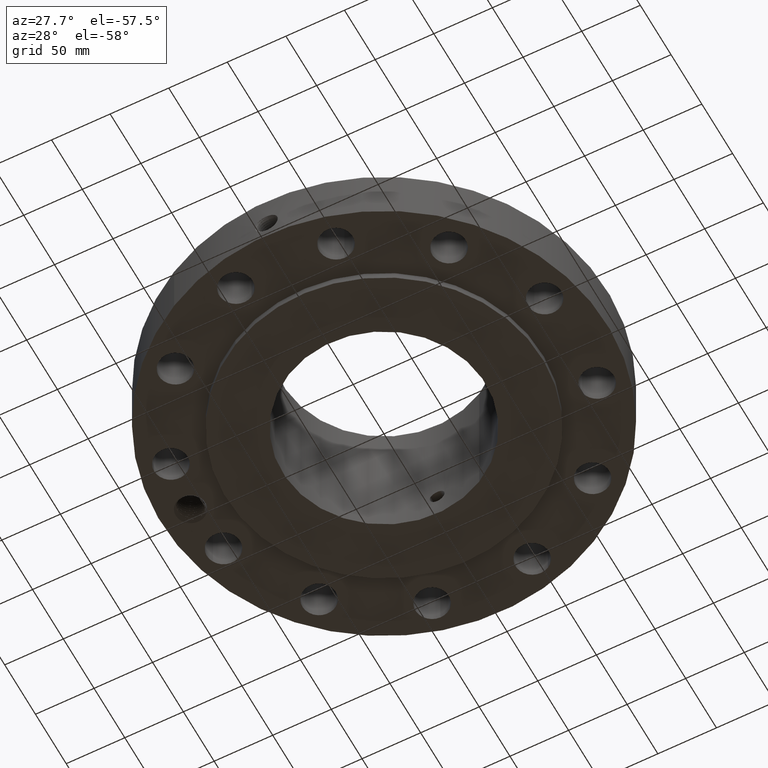
[diagram: clean part render]
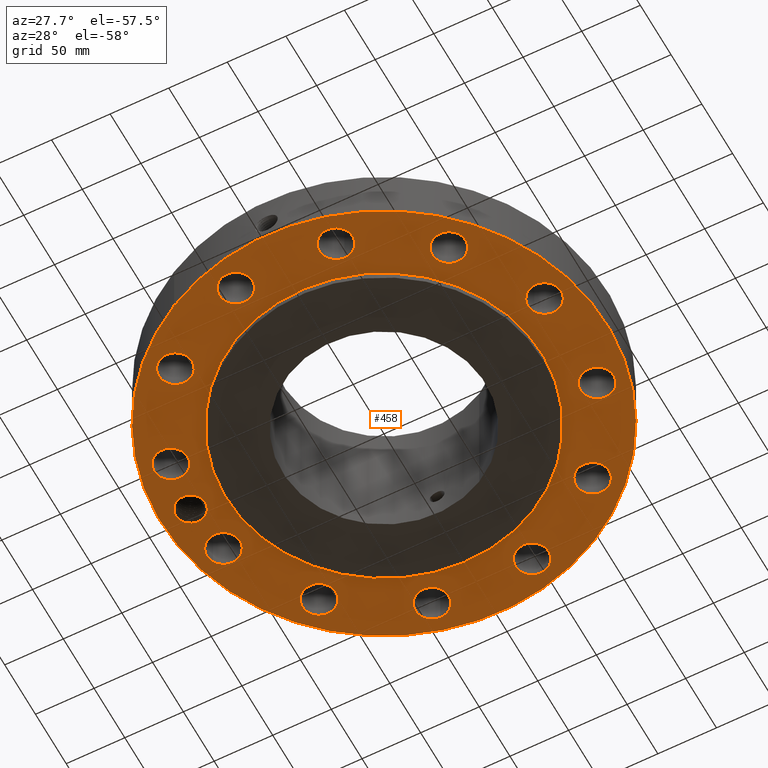
[diagram: same view with one face highlighted and labeled with its STEP entity id]
A machine part, auxiliary view. The second image highlights one B-rep face of the part: STEP entity #458.
In plain terms, the highlighted planar face has unit normal (0, 0, -1).
Its self-contained STEP definition (entity closure, byte-faithful):
#42=AXIS2_PLACEMENT_3D('Circle Axis2P3D',#40,#41,$) ;
#165=AXIS2_PLACEMENT_3D('Plane Axis2P3D',#162,#163,#164) ;
#169=AXIS2_PLACEMENT_3D('Circle Axis2P3D',#167,#168,$) ;
#178=AXIS2_PLACEMENT_3D('Circle Axis2P3D',#176,#177,$) ;
#187=AXIS2_PLACEMENT_3D('Circle Axis2P3D',#185,#186,$) ;
#194=AXIS2_PLACEMENT_3D('Circle Axis2P3D',#192,#193,$) ;
#226=AXIS2_PLACEMENT_3D('Circle Axis2P3D',#224,#225,$) ;
#235=AXIS2_PLACEMENT_3D('Circle Axis2P3D',#233,#234,$) ;
#244=AXIS2_PLACEMENT_3D('Circle Axis2P3D',#242,#243,$) ;
#253=AXIS2_PLACEMENT_3D('Circle Axis2P3D',#251,#252,$) ;
#262=AXIS2_PLACEMENT_3D('Circle Axis2P3D',#260,#261,$) ;
#271=AXIS2_PLACEMENT_3D('Circle Axis2P3D',#269,#270,$) ;
#280=AXIS2_PLACEMENT_3D('Circle Axis2P3D',#278,#279,$) ;
#289=AXIS2_PLACEMENT_3D('Circle Axis2P3D',#287,#288,$) ;
#298=AXIS2_PLACEMENT_3D('Circle Axis2P3D',#296,#297,$) ;
#307=AXIS2_PLACEMENT_3D('Circle Axis2P3D',#305,#306,$) ;
#316=AXIS2_PLACEMENT_3D('Circle Axis2P3D',#314,#315,$) ;
#325=AXIS2_PLACEMENT_3D('Circle Axis2P3D',#323,#324,$) ;
#334=AXIS2_PLACEMENT_3D('Circle Axis2P3D',#332,#333,$) ;
#343=AXIS2_PLACEMENT_3D('Circle Axis2P3D',#341,#342,$) ;
#352=AXIS2_PLACEMENT_3D('Circle Axis2P3D',#350,#351,$) ;
#361=AXIS2_PLACEMENT_3D('Circle Axis2P3D',#359,#360,$) ;
#370=AXIS2_PLACEMENT_3D('Circle Axis2P3D',#368,#369,$) ;
#379=AXIS2_PLACEMENT_3D('Circle Axis2P3D',#377,#378,$) ;
#388=AXIS2_PLACEMENT_3D('Circle Axis2P3D',#386,#387,$) ;
#397=AXIS2_PLACEMENT_3D('Circle Axis2P3D',#395,#396,$) ;
#406=AXIS2_PLACEMENT_3D('Circle Axis2P3D',#404,#405,$) ;
#415=AXIS2_PLACEMENT_3D('Circle Axis2P3D',#413,#414,$) ;
#424=AXIS2_PLACEMENT_3D('Circle Axis2P3D',#422,#423,$) ;
#433=AXIS2_PLACEMENT_3D('Circle Axis2P3D',#431,#432,$) ;
#442=AXIS2_PLACEMENT_3D('Circle Axis2P3D',#440,#441,$) ;
#451=AXIS2_PLACEMENT_3D('Circle Axis2P3D',#449,#450,$) ;
#40=CARTESIAN_POINT('Axis2P3D Location',(0.,0.,0.250000000001)) ;
#44=CARTESIAN_POINT('Vertex',(-3.59569153955,-6.5818692142,0.250000000001)) ;
#46=CARTESIAN_POINT('Vertex',(3.59569153955,6.5818692142,0.250000000001)) ;
#162=CARTESIAN_POINT('Axis2P3D Location',(0.,5.31000000002,0.250000000001)) ;
#167=CARTESIAN_POINT('Axis2P3D Location',(0.,0.,0.250000000001)) ;
#176=CARTESIAN_POINT('Axis2P3D Location',(-6.50000000003,1.1189649382E-015,0.250000000001)) ;
#180=CARTESIAN_POINT('Vertex',(-6.93659732457,0.238514205457,0.250000000001)) ;
#182=CARTESIAN_POINT('Vertex',(-6.00654917209,-0.0633445373634,0.250000000001)) ;
#185=CARTESIAN_POINT('Axis2P3D Location',(-6.50000000003,1.1189649382E-015,0.250000000001)) ;
#189=CARTESIAN_POINT('Vertex',(-6.06340267548,-0.238514205457,0.250000000001)) ;
#192=CARTESIAN_POINT('Axis2P3D Location',(-6.50000000003,1.1189649382E-015,0.250000000001)) ;
#196=CARTESIAN_POINT('Vertex',(-6.0371496558,-0.182416580519,0.250000000001)) ;
#200=CARTESIAN_POINT('Control Point',(-6.0156992219,-0.124333932227,0.250000000001)) ;
#201=CARTESIAN_POINT('Control Point',(-6.01926733583,-0.136219196793,0.250000000001)) ;
#202=CARTESIAN_POINT('Control Point',(-6.02320188199,-0.147985150265,0.250000000001)) ;
#203=CARTESIAN_POINT('Control Point',(-6.02749790454,-0.159616553925,0.250000000001)) ;
#204=CARTESIAN_POINT('Control Point',(-6.03214945164,-0.171098513007,0.250000000001)) ;
#205=CARTESIAN_POINT('Control Point',(-6.0371496558,-0.182416580519,0.250000000001)) ;
#206=CARTESIAN_POINT('Vertex',(-6.0156992219,-0.124333932231,0.250000000001)) ;
#210=CARTESIAN_POINT('Control Point',(-6.0156992219,-0.124333932231,0.250000000001)) ;
#211=CARTESIAN_POINT('Control Point',(-6.01311478049,-0.11225359188,0.250000000001)) ;
#212=CARTESIAN_POINT('Control Point',(-6.01090484628,-0.100098834105,0.250000000001)) ;
#213=CARTESIAN_POINT('Control Point',(-6.00907260953,-0.0878851673801,0.250000000001)) ;
#214=CARTESIAN_POINT('Control Point',(-6.00762029825,-0.0756283961532,0.250000000001)) ;
#215=CARTESIAN_POINT('Control Point',(-6.00654917209,-0.0633445373634,0.250000000001)) ;
#224=CARTESIAN_POINT('Axis2P3D Location',(6.2785178709,-1.68232379317,0.250000000001)) ;
#228=CARTESIAN_POINT('Vertex',(6.76996410556,-1.95080209479,0.250000000001)) ;
#230=CARTESIAN_POINT('Vertex',(5.78707163624,-1.41384549155,0.250000000001)) ;
#233=CARTESIAN_POINT('Axis2P3D Location',(6.2785178709,-1.68232379317,0.250000000001)) ;
#242=CARTESIAN_POINT('Axis2P3D Location',(0.,0.,0.250000000001)) ;
#246=CARTESIAN_POINT('Vertex',(2.54574961,4.65996340366,0.250000000001)) ;
#248=CARTESIAN_POINT('Vertex',(-2.54574961,-4.65996340366,0.250000000001)) ;
#251=CARTESIAN_POINT('Axis2P3D Location',(0.,0.,0.250000000001)) ;
#260=CARTESIAN_POINT('Axis2P3D Location',(4.59619407773,-4.59619407773,0.250000000001)) ;
#264=CARTESIAN_POINT('Vertex',(4.30482830473,-4.11796193083,0.250000000001)) ;
#266=CARTESIAN_POINT('Vertex',(4.88755985073,-5.07442622463,0.250000000001)) ;
#269=CARTESIAN_POINT('Axis2P3D Location',(4.59619407773,-4.59619407773,0.250000000001)) ;
#278=CARTESIAN_POINT('Axis2P3D Location',(1.68232379317,-6.2785178709,0.250000000001)) ;
#282=CARTESIAN_POINT('Vertex',(1.66910970541,-5.71867379628,0.250000000001)) ;
#284=CARTESIAN_POINT('Vertex',(1.69553788094,-6.83836194552,0.250000000001)) ;
#287=CARTESIAN_POINT('Axis2P3D Location',(1.68232379317,-6.2785178709,0.250000000001)) ;
#296=CARTESIAN_POINT('Axis2P3D Location',(-1.68232379317,-6.2785178709,0.250000000001)) ;
#300=CARTESIAN_POINT('Vertex',(-1.41384549155,-5.78707163624,0.250000000001)) ;
#302=CARTESIAN_POINT('Vertex',(-1.95080209479,-6.76996410556,0.250000000001)) ;
#305=CARTESIAN_POINT('Axis2P3D Location',(-1.68232379317,-6.2785178709,0.250000000001)) ;
#314=CARTESIAN_POINT('Axis2P3D Location',(-4.59619407773,-4.59619407773,0.250000000001)) ;
#318=CARTESIAN_POINT('Vertex',(-4.11796193083,-4.30482830473,0.250000000001)) ;
#320=CARTESIAN_POINT('Vertex',(-5.07442622463,-4.88755985073,0.250000000001)) ;
#323=CARTESIAN_POINT('Axis2P3D Location',(-4.59619407773,-4.59619407773,0.250000000001)) ;
#332=CARTESIAN_POINT('Axis2P3D Location',(-6.2785178709,-1.68232379317,0.250000000001)) ;
#336=CARTESIAN_POINT('Vertex',(-5.71867379628,-1.66910970541,0.250000000001)) ;
#338=CARTESIAN_POINT('Vertex',(-6.83836194552,-1.69553788094,0.250000000001)) ;
#341=CARTESIAN_POINT('Axis2P3D Location',(-6.2785178709,-1.68232379317,0.250000000001)) ;
#350=CARTESIAN_POINT('Axis2P3D Location',(-6.2785178709,1.68232379317,0.250000000001)) ;
#354=CARTESIAN_POINT('Vertex',(-5.78707163624,1.41384549155,0.250000000001)) ;
#356=CARTESIAN_POINT('Vertex',(-6.76996410556,1.95080209479,0.250000000001)) ;
#359=CARTESIAN_POINT('Axis2P3D Location',(-6.2785178709,1.68232379317,0.250000000001)) ;
#368=CARTESIAN_POINT('Axis2P3D Location',(-4.59619407773,4.59619407773,0.250000000001)) ;
#372=CARTESIAN_POINT('Vertex',(-4.30482830473,4.11796193083,0.250000000001)) ;
#374=CARTESIAN_POINT('Vertex',(-4.88755985073,5.07442622463,0.250000000001)) ;
#377=CARTESIAN_POINT('Axis2P3D Location',(-4.59619407773,4.59619407773,0.250000000001)) ;
#386=CARTESIAN_POINT('Axis2P3D Location',(-1.68232379317,6.2785178709,0.250000000001)) ;
#390=CARTESIAN_POINT('Vertex',(-1.66910970541,5.71867379628,0.250000000001)) ;
#392=CARTESIAN_POINT('Vertex',(-1.69553788094,6.83836194552,0.250000000001)) ;
#395=CARTESIAN_POINT('Axis2P3D Location',(-1.68232379317,6.2785178709,0.250000000001)) ;
#404=CARTESIAN_POINT('Axis2P3D Location',(1.68232379317,6.2785178709,0.250000000001)) ;
#408=CARTESIAN_POINT('Vertex',(1.41384549155,5.78707163624,0.250000000001)) ;
#410=CARTESIAN_POINT('Vertex',(1.95080209479,6.76996410556,0.250000000001)) ;
#413=CARTESIAN_POINT('Axis2P3D Location',(1.68232379317,6.2785178709,0.250000000001)) ;
#422=CARTESIAN_POINT('Axis2P3D Location',(4.59619407773,4.59619407773,0.250000000001)) ;
#426=CARTESIAN_POINT('Vertex',(4.11796193083,4.30482830473,0.250000000001)) ;
#428=CARTESIAN_POINT('Vertex',(5.07442622463,4.88755985073,0.250000000001)) ;
#431=CARTESIAN_POINT('Axis2P3D Location',(4.59619407773,4.59619407773,0.250000000001)) ;
#440=CARTESIAN_POINT('Axis2P3D Location',(6.2785178709,1.68232379317,0.250000000001)) ;
#444=CARTESIAN_POINT('Vertex',(5.71867379628,1.66910970541,0.250000000001)) ;
#446=CARTESIAN_POINT('Vertex',(6.83836194552,1.69553788094,0.250000000001)) ;
#449=CARTESIAN_POINT('Axis2P3D Location',(6.2785178709,1.68232379317,0.250000000001)) ;
#41=DIRECTION('Axis2P3D Direction',(0.,0.,-0.0393700787402)) ;
#163=DIRECTION('Axis2P3D Direction',(0.,0.,-0.0393700787402)) ;
#164=DIRECTION('Axis2P3D XDirection',(0.0393700787402,0.,0.)) ;
#168=DIRECTION('Axis2P3D Direction',(0.,0.,-0.0393700787402)) ;
#177=DIRECTION('Axis2P3D Direction',(0.,0.,-0.0393700787402)) ;
#186=DIRECTION('Axis2P3D Direction',(0.,0.,-0.0393700787402)) ;
#193=DIRECTION('Axis2P3D Direction',(0.,0.,-0.0393700787402)) ;
#225=DIRECTION('Axis2P3D Direction',(0.,0.,-0.0393700787402)) ;
#234=DIRECTION('Axis2P3D Direction',(0.,0.,-0.0393700787402)) ;
#243=DIRECTION('Axis2P3D Direction',(0.,0.,-0.0393700787402)) ;
#252=DIRECTION('Axis2P3D Direction',(0.,0.,-0.0393700787402)) ;
#261=DIRECTION('Axis2P3D Direction',(0.,0.,-0.0393700787402)) ;
#270=DIRECTION('Axis2P3D Direction',(0.,0.,-0.0393700787402)) ;
#279=DIRECTION('Axis2P3D Direction',(0.,0.,-0.0393700787402)) ;
#288=DIRECTION('Axis2P3D Direction',(0.,0.,-0.0393700787402)) ;
#297=DIRECTION('Axis2P3D Direction',(0.,0.,-0.0393700787402)) ;
#306=DIRECTION('Axis2P3D Direction',(0.,0.,-0.0393700787402)) ;
#315=DIRECTION('Axis2P3D Direction',(0.,0.,-0.0393700787402)) ;
#324=DIRECTION('Axis2P3D Direction',(0.,0.,-0.0393700787402)) ;
#333=DIRECTION('Axis2P3D Direction',(0.,0.,-0.0393700787402)) ;
#342=DIRECTION('Axis2P3D Direction',(0.,0.,-0.0393700787402)) ;
#351=DIRECTION('Axis2P3D Direction',(0.,0.,-0.0393700787402)) ;
#360=DIRECTION('Axis2P3D Direction',(0.,0.,-0.0393700787402)) ;
#369=DIRECTION('Axis2P3D Direction',(0.,0.,-0.0393700787402)) ;
#378=DIRECTION('Axis2P3D Direction',(0.,0.,-0.0393700787402)) ;
#387=DIRECTION('Axis2P3D Direction',(0.,0.,-0.0393700787402)) ;
#396=DIRECTION('Axis2P3D Direction',(0.,0.,-0.0393700787402)) ;
#405=DIRECTION('Axis2P3D Direction',(0.,0.,-0.0393700787402)) ;
#414=DIRECTION('Axis2P3D Direction',(0.,0.,-0.0393700787402)) ;
#423=DIRECTION('Axis2P3D Direction',(0.,0.,-0.0393700787402)) ;
#432=DIRECTION('Axis2P3D Direction',(0.,0.,-0.0393700787402)) ;
#441=DIRECTION('Axis2P3D Direction',(0.,0.,-0.0393700787402)) ;
#450=DIRECTION('Axis2P3D Direction',(0.,0.,-0.0393700787402)) ;
#173=ORIENTED_EDGE('',*,*,#48,.T.) ;
#174=ORIENTED_EDGE('',*,*,#171,.T.) ;
#218=ORIENTED_EDGE('',*,*,#184,.F.) ;
#219=ORIENTED_EDGE('',*,*,#191,.F.) ;
#220=ORIENTED_EDGE('',*,*,#198,.F.) ;
#221=ORIENTED_EDGE('',*,*,#208,.F.) ;
#222=ORIENTED_EDGE('',*,*,#216,.T.) ;
#239=ORIENTED_EDGE('',*,*,#232,.F.) ;
#240=ORIENTED_EDGE('',*,*,#237,.F.) ;
#257=ORIENTED_EDGE('',*,*,#250,.F.) ;
#258=ORIENTED_EDGE('',*,*,#255,.F.) ;
#275=ORIENTED_EDGE('',*,*,#268,.F.) ;
#276=ORIENTED_EDGE('',*,*,#273,.F.) ;
#293=ORIENTED_EDGE('',*,*,#286,.F.) ;
#294=ORIENTED_EDGE('',*,*,#291,.F.) ;
#311=ORIENTED_EDGE('',*,*,#304,.F.) ;
#312=ORIENTED_EDGE('',*,*,#309,.F.) ;
#329=ORIENTED_EDGE('',*,*,#322,.F.) ;
#330=ORIENTED_EDGE('',*,*,#327,.F.) ;
#347=ORIENTED_EDGE('',*,*,#340,.F.) ;
#348=ORIENTED_EDGE('',*,*,#345,.F.) ;
#365=ORIENTED_EDGE('',*,*,#358,.F.) ;
#366=ORIENTED_EDGE('',*,*,#363,.F.) ;
#383=ORIENTED_EDGE('',*,*,#376,.F.) ;
#384=ORIENTED_EDGE('',*,*,#381,.F.) ;
#401=ORIENTED_EDGE('',*,*,#394,.F.) ;
#402=ORIENTED_EDGE('',*,*,#399,.F.) ;
#419=ORIENTED_EDGE('',*,*,#412,.F.) ;
#420=ORIENTED_EDGE('',*,*,#417,.F.) ;
#437=ORIENTED_EDGE('',*,*,#430,.F.) ;
#438=ORIENTED_EDGE('',*,*,#435,.F.) ;
#455=ORIENTED_EDGE('',*,*,#448,.F.) ;
#456=ORIENTED_EDGE('',*,*,#453,.F.) ;
#223=FACE_BOUND('',#217,.T.) ;
#241=FACE_BOUND('',#238,.T.) ;
#259=FACE_BOUND('',#256,.T.) ;
#277=FACE_BOUND('',#274,.T.) ;
#295=FACE_BOUND('',#292,.T.) ;
#313=FACE_BOUND('',#310,.T.) ;
#331=FACE_BOUND('',#328,.T.) ;
#349=FACE_BOUND('',#346,.T.) ;
#367=FACE_BOUND('',#364,.T.) ;
#385=FACE_BOUND('',#382,.T.) ;
#403=FACE_BOUND('',#400,.T.) ;
#421=FACE_BOUND('',#418,.T.) ;
#439=FACE_BOUND('',#436,.T.) ;
#457=FACE_BOUND('',#454,.T.) ;
#458=ADVANCED_FACE('PartBody',(#175,#223,#241,#259,#277,#295,#313,#331,#349,#367,#385,#403,#421,#439,#457),#166,.T.) ;
#199=B_SPLINE_CURVE_WITH_KNOTS('',5,(#200,#201,#202,#203,#204,#205),.UNSPECIFIED.,.F.,.U.,(6,6),(0.,2.16318149343),.UNSPECIFIED.) ;
#209=B_SPLINE_CURVE_WITH_KNOTS('',5,(#210,#211,#212,#213,#214,#215),.UNSPECIFIED.,.F.,.U.,(6,6),(0.,2.15348039882),.UNSPECIFIED.) ;
#43=CIRCLE('generated circle',#42,7.50000000003) ;
#170=CIRCLE('generated circle',#169,7.50000000003) ;
#179=CIRCLE('generated circle',#178,0.497500000002) ;
#188=CIRCLE('generated circle',#187,0.497500000002) ;
#195=CIRCLE('generated circle',#194,0.497500000002) ;
#227=CIRCLE('generated circle',#226,0.560000000002) ;
#236=CIRCLE('generated circle',#235,0.560000000002) ;
#245=CIRCLE('generated circle',#244,5.31000000002) ;
#254=CIRCLE('generated circle',#253,5.31000000002) ;
#263=CIRCLE('generated circle',#262,0.560000000002) ;
#272=CIRCLE('generated circle',#271,0.560000000002) ;
#281=CIRCLE('generated circle',#280,0.560000000002) ;
#290=CIRCLE('generated circle',#289,0.560000000002) ;
#299=CIRCLE('generated circle',#298,0.560000000002) ;
#308=CIRCLE('generated circle',#307,0.560000000002) ;
#317=CIRCLE('generated circle',#316,0.560000000002) ;
#326=CIRCLE('generated circle',#325,0.560000000002) ;
#335=CIRCLE('generated circle',#334,0.560000000002) ;
#344=CIRCLE('generated circle',#343,0.560000000002) ;
#353=CIRCLE('generated circle',#352,0.560000000002) ;
#362=CIRCLE('generated circle',#361,0.560000000002) ;
#371=CIRCLE('generated circle',#370,0.560000000002) ;
#380=CIRCLE('generated circle',#379,0.560000000002) ;
#389=CIRCLE('generated circle',#388,0.560000000002) ;
#398=CIRCLE('generated circle',#397,0.560000000002) ;
#407=CIRCLE('generated circle',#406,0.560000000002) ;
#416=CIRCLE('generated circle',#415,0.560000000002) ;
#425=CIRCLE('generated circle',#424,0.560000000002) ;
#434=CIRCLE('generated circle',#433,0.560000000002) ;
#443=CIRCLE('generated circle',#442,0.560000000002) ;
#452=CIRCLE('generated circle',#451,0.560000000002) ;
#48=EDGE_CURVE('',#45,#47,#43,.T.) ;
#171=EDGE_CURVE('',#47,#45,#170,.T.) ;
#184=EDGE_CURVE('',#181,#183,#179,.T.) ;
#191=EDGE_CURVE('',#190,#181,#188,.T.) ;
#198=EDGE_CURVE('',#197,#190,#195,.T.) ;
#208=EDGE_CURVE('',#207,#197,#199,.T.) ;
#216=EDGE_CURVE('',#207,#183,#209,.T.) ;
#232=EDGE_CURVE('',#229,#231,#227,.T.) ;
#237=EDGE_CURVE('',#231,#229,#236,.T.) ;
#250=EDGE_CURVE('',#247,#249,#245,.T.) ;
#255=EDGE_CURVE('',#249,#247,#254,.T.) ;
#268=EDGE_CURVE('',#265,#267,#263,.T.) ;
#273=EDGE_CURVE('',#267,#265,#272,.T.) ;
#286=EDGE_CURVE('',#283,#285,#281,.T.) ;
#291=EDGE_CURVE('',#285,#283,#290,.T.) ;
#304=EDGE_CURVE('',#301,#303,#299,.T.) ;
#309=EDGE_CURVE('',#303,#301,#308,.T.) ;
#322=EDGE_CURVE('',#319,#321,#317,.T.) ;
#327=EDGE_CURVE('',#321,#319,#326,.T.) ;
#340=EDGE_CURVE('',#337,#339,#335,.T.) ;
#345=EDGE_CURVE('',#339,#337,#344,.T.) ;
#358=EDGE_CURVE('',#355,#357,#353,.T.) ;
#363=EDGE_CURVE('',#357,#355,#362,.T.) ;
#376=EDGE_CURVE('',#373,#375,#371,.T.) ;
#381=EDGE_CURVE('',#375,#373,#380,.T.) ;
#394=EDGE_CURVE('',#391,#393,#389,.T.) ;
#399=EDGE_CURVE('',#393,#391,#398,.T.) ;
#412=EDGE_CURVE('',#409,#411,#407,.T.) ;
#417=EDGE_CURVE('',#411,#409,#416,.T.) ;
#430=EDGE_CURVE('',#427,#429,#425,.T.) ;
#435=EDGE_CURVE('',#429,#427,#434,.T.) ;
#448=EDGE_CURVE('',#445,#447,#443,.T.) ;
#453=EDGE_CURVE('',#447,#445,#452,.T.) ;
#172=EDGE_LOOP('',(#173,#174)) ;
#217=EDGE_LOOP('',(#218,#219,#220,#221,#222)) ;
#238=EDGE_LOOP('',(#239,#240)) ;
#256=EDGE_LOOP('',(#257,#258)) ;
#274=EDGE_LOOP('',(#275,#276)) ;
#292=EDGE_LOOP('',(#293,#294)) ;
#310=EDGE_LOOP('',(#311,#312)) ;
#328=EDGE_LOOP('',(#329,#330)) ;
#346=EDGE_LOOP('',(#347,#348)) ;
#364=EDGE_LOOP('',(#365,#366)) ;
#382=EDGE_LOOP('',(#383,#384)) ;
#400=EDGE_LOOP('',(#401,#402)) ;
#418=EDGE_LOOP('',(#419,#420)) ;
#436=EDGE_LOOP('',(#437,#438)) ;
#454=EDGE_LOOP('',(#455,#456)) ;
#175=FACE_OUTER_BOUND('',#172,.T.) ;
#166=PLANE('',#165) ;
#45=VERTEX_POINT('',#44) ;
#47=VERTEX_POINT('',#46) ;
#181=VERTEX_POINT('',#180) ;
#183=VERTEX_POINT('',#182) ;
#190=VERTEX_POINT('',#189) ;
#197=VERTEX_POINT('',#196) ;
#207=VERTEX_POINT('',#206) ;
#229=VERTEX_POINT('',#228) ;
#231=VERTEX_POINT('',#230) ;
#247=VERTEX_POINT('',#246) ;
#249=VERTEX_POINT('',#248) ;
#265=VERTEX_POINT('',#264) ;
#267=VERTEX_POINT('',#266) ;
#283=VERTEX_POINT('',#282) ;
#285=VERTEX_POINT('',#284) ;
#301=VERTEX_POINT('',#300) ;
#303=VERTEX_POINT('',#302) ;
#319=VERTEX_POINT('',#318) ;
#321=VERTEX_POINT('',#320) ;
#337=VERTEX_POINT('',#336) ;
#339=VERTEX_POINT('',#338) ;
#355=VERTEX_POINT('',#354) ;
#357=VERTEX_POINT('',#356) ;
#373=VERTEX_POINT('',#372) ;
#375=VERTEX_POINT('',#374) ;
#391=VERTEX_POINT('',#390) ;
#393=VERTEX_POINT('',#392) ;
#409=VERTEX_POINT('',#408) ;
#411=VERTEX_POINT('',#410) ;
#427=VERTEX_POINT('',#426) ;
#429=VERTEX_POINT('',#428) ;
#445=VERTEX_POINT('',#444) ;
#447=VERTEX_POINT('',#446) ;